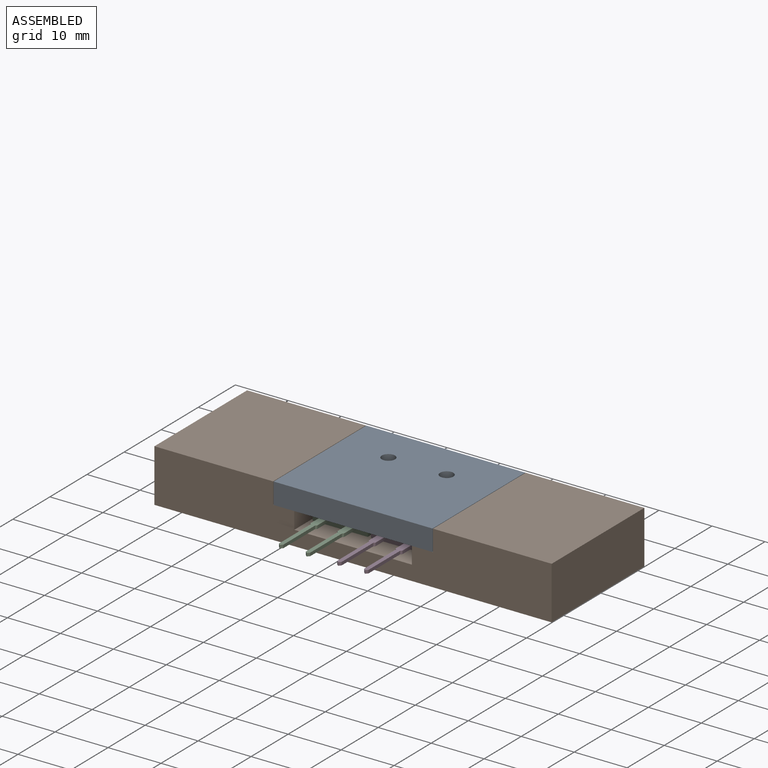
[diagram: assembled view]
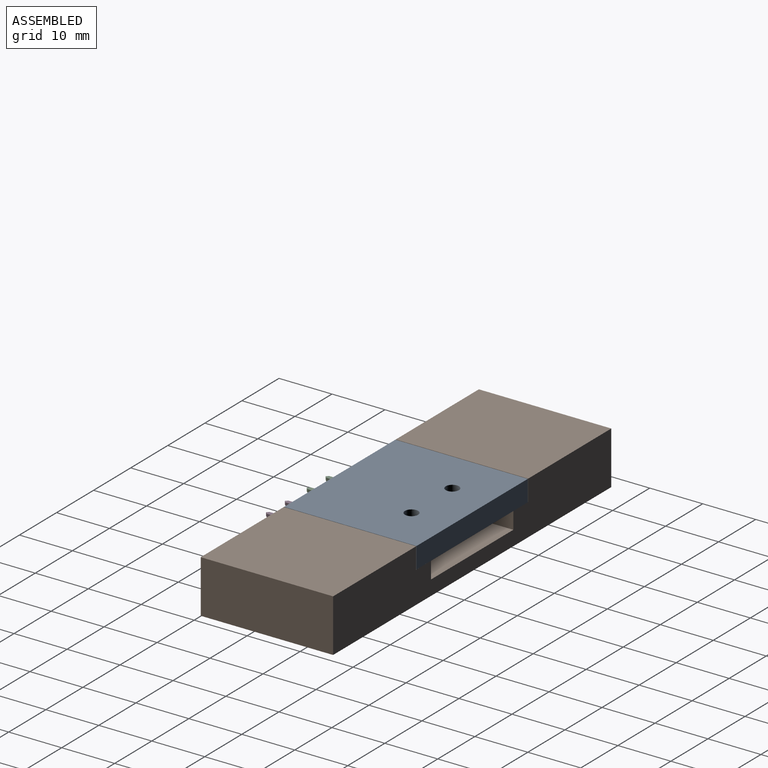
[diagram: assembled view, second angle]
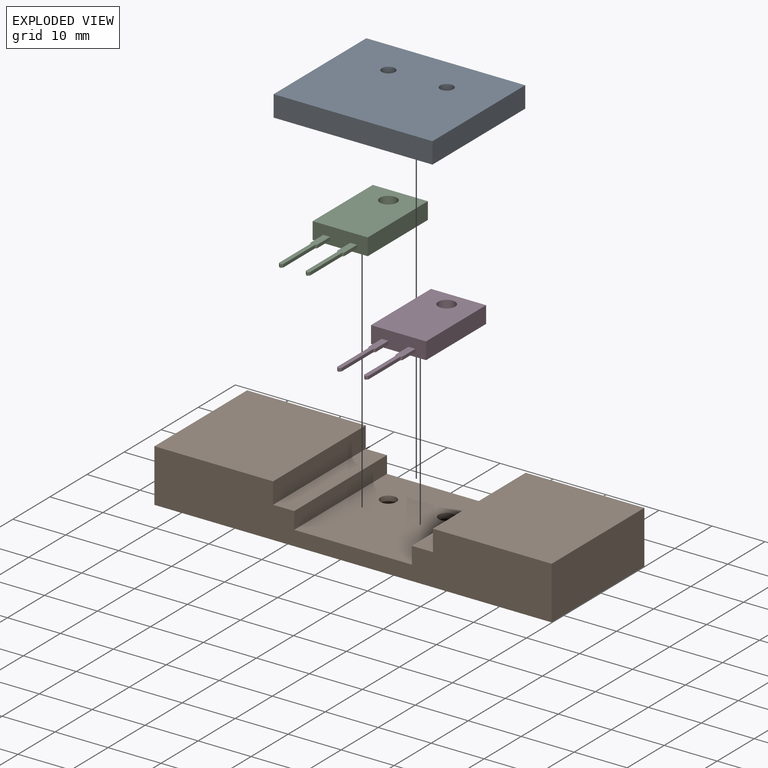
[diagram: exploded view]
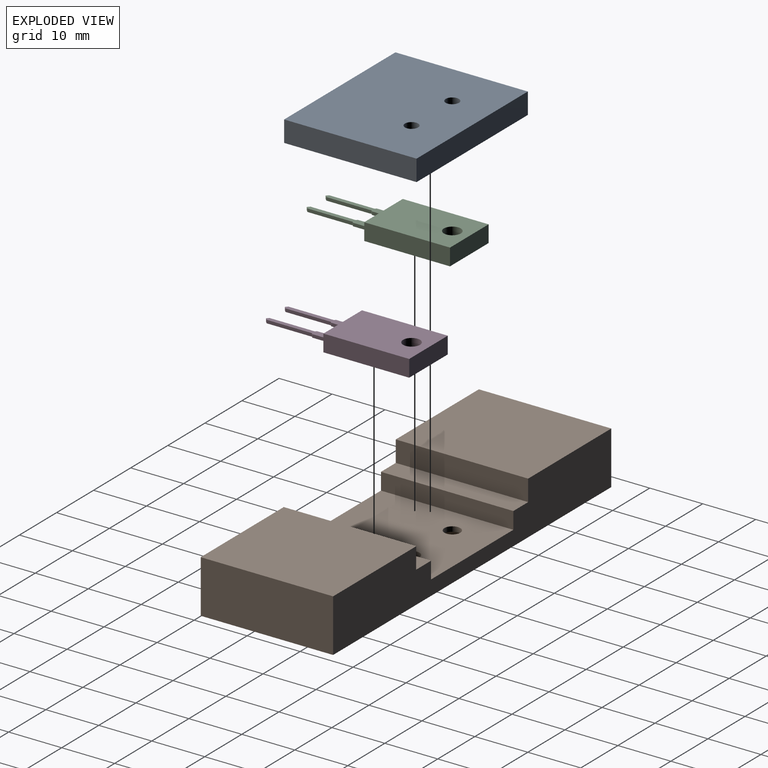
[diagram: exploded view, second angle]
ASSEMBLY  parts=4 mates=5
PART A: 8 faces, bbox 30x25x4 mm
  f0: plane 25x4mm, normal (1,0,0), area 100mm2, adj f1,f3,f4,f5
  f1: plane 30x4mm, normal (0,1,0), area 120mm2, adj f0,f2,f4,f5
  f2: plane 25x4mm, normal (-1,0,0), area 100mm2, adj f1,f3,f4,f5
  f3: plane 30x4mm, normal (0,-1,0), area 120mm2, adj f0,f2,f4,f5
  f4: plane 30x25mm, normal (0,0,1), area 740.2mm2, adj f0,f1,f2,f3,f6,f7
  f5: plane 30x25mm, normal (0,0,-1), area 740.2mm2, adj f0,f1,f2,f3,f6,f7
  f6: cylinder r=1.25mm len=4mm, axis (0,0,-1), area 31.4mm2, adj f4,f5
  f7: cylinder r=1.25mm len=4mm, axis (0,0,-1), area 31.4mm2, adj f4,f5
PART B: 18 faces, bbox 75x25x10 mm
  f0: plane 25x4mm, normal (0,0,1), area 100mm2, adj f1,f4,f8,f12
  f1: plane 75x10mm, normal (0,-1,0), area 558.2mm2, adj f0,f2,f3,f5,f6,f7,f8,f9
  f2: plane 25x22.4mm, normal (0,0,1), area 560mm2, adj f1,f3,f4,f8
  f3: plane 25x10mm, normal (1,0,0), area 250mm2, adj f1,f2,f4,f7
  f4: plane 75x10mm, normal (0,1,0), area 558.2mm2, adj f0,f2,f3,f5,f6,f7,f8,f9
  f5: plane 25x10mm, normal (-1,0,0), area 250mm2, adj f1,f4,f6,f7
  f6: plane 25x22.4mm, normal (0,0,1), area 560mm2, adj f1,f4,f5,f9
  f7: plane 75x25mm, normal (0,0,-1), area 1804.1mm2, adj f1,f3,f4,f5,f15,f17
  f8: plane 25x4mm, normal (-1,0,0), area 100mm2, adj f0,f1,f2,f4
  f9: plane 25x4mm, normal (1,0,0), area 100mm2, adj f1,f4,f6,f10
  f10: plane 25x4mm, normal (0,0,1), area 100mm2, adj f1,f4,f9,f11
  f11: plane 25x3.2mm, normal (1,0,0), area 80mm2, adj f1,f4,f10,f13
  f12: plane 25x3.2mm, normal (-1,0,0), area 80mm2, adj f0,f1,f4,f13
  f13: plane 25x22.2mm, normal (0,0,1), area 540.9mm2, adj f1,f4,f11,f12,f14,f16
  f14: cylinder r=1.5mm len=3mm, axis (0,0,-1), area 8.9mm2, adj f13,f15
  f15: cone r=1.5mm half-angle=45deg, axis (0,0,-1), area 40.2mm2, adj f7,f14
  f16: cylinder r=1.5mm len=3mm, axis (0,0,-1), area 8.9mm2, adj f13,f17
  f17: cone r=1.5mm half-angle=45deg, axis (0,0,-1), area 40.2mm2, adj f7,f16
PART C: 27 faces, bbox 10.4x28.9x3.2 mm
  f0: plane 10.4x3.2mm, normal (0,-1,0), area 31.7mm2, adj f1,f3,f5,f6,f7,f8,f15,f16
  f1: plane 16.2x3.2mm, normal (1,0,0), area 51.8mm2, adj f0,f2,f5,f6
  f2: plane 10.4x3.2mm, normal (0,1,0), area 33.3mm2, adj f1,f3,f5,f6
  f3: plane 16.2x3.2mm, normal (-1,0,0), area 51.8mm2, adj f0,f2,f5,f6
  f4: cylinder r=1.6mm len=3.2mm, axis (0,0,-1), area 32.2mm2, adj f5,f6
  f5: plane 16.2x10.4mm, normal (0,0,1), area 160.4mm2, adj f0,f1,f2,f3,f4
  f6: plane 16.2x10.4mm, normal (0,0,-1), area 160.4mm2, adj f0,f1,f2,f3,f4
  f7: plane 3.5x0.6mm, normal (1,0,0), area 2.1mm2, adj f0,f14,f15,f16
  f8: plane 3.5x0.6mm, normal (-1,0,0), area 2.1mm2, adj f0,f9,f15,f16
  f9: plane 0.6x0.25mm, normal (-0.71,-0.71,0), area 0.2mm2, adj f8,f10,f15,f16
  f10: plane 8.55x0.6mm, normal (-1,0,0), area 5.1mm2, adj f9,f11,f15,f16
  f11: plane 0.6x0.4mm, normal (-0.71,-0.71,0), area 0.3mm2, adj f10,f12,f15,f16
  f12: plane 0.6x0.4mm, normal (0.71,-0.71,0), area 0.3mm2, adj f11,f13,f15,f16
  f13: plane 8.55x0.6mm, normal (1,0,0), area 5.1mm2, adj f12,f14,f15,f16
  f14: plane 0.6x0.25mm, normal (0.71,-0.71,0), area 0.2mm2, adj f7,f13,f15,f16
  f15: plane 12.7x1.3mm, normal (0,0,1), area 11.8mm2, adj f0,f7,f8,f9,f10,f11,f12,f13
  f16: plane 12.7x1.3mm, normal (0,0,-1), area 11.8mm2, adj f0,f7,f8,f9,f10,f11,f12,f13
  f17: plane 3.5x0.6mm, normal (-1,0,0), area 2.1mm2, adj f0,f18,f25,f26
  f18: plane 0.6x0.25mm, normal (-0.71,-0.71,0), area 0.2mm2, adj f17,f19,f25,f26
  f19: plane 8.55x0.6mm, normal (-1,0,0), area 5.1mm2, adj f18,f20,f25,f26
  f20: plane 0.6x0.4mm, normal (-0.71,-0.71,0), area 0.3mm2, adj f19,f21,f25,f26
  f21: plane 0.6x0.4mm, normal (0.71,-0.71,0), area 0.3mm2, adj f20,f22,f25,f26
  f22: plane 8.55x0.6mm, normal (1,0,0), area 5.1mm2, adj f21,f23,f25,f26
  f23: plane 0.6x0.25mm, normal (0.71,-0.71,0), area 0.2mm2, adj f22,f24,f25,f26
  f24: plane 3.5x0.6mm, normal (1,0,0), area 2.1mm2, adj f0,f23,f25,f26
  f25: plane 12.7x1.3mm, normal (0,0,1), area 11.8mm2, adj f0,f17,f18,f19,f20,f21,f22,f23
  f26: plane 12.7x1.3mm, normal (0,0,-1), area 11.8mm2, adj f0,f17,f18,f19,f20,f21,f22,f23
PART D: same geometry as C
PLACE A at identity fixed
PLACE B t=(0,0,-6)mm
PLACE C rot(axis=(0,1,0),180deg) t=(-5.5,0,0)mm
PLACE D rot(axis=(0,1,0),180deg) t=(5.5,0,0)mm
MATE planar A.f5 <-> C.f6  axis (0,0,-1) through (0,-0.06,0)mm
MATE planar A.f5 <-> D.f6  axis (0,0,-1) through (0,-0.06,0)mm
MATE cylindrical A.f7 <-> C.f4  axis (0,0,-1) through (-5.5,4.9,0)mm
MATE planar A.f5 <-> B.f0  axis (0,0,-1) through (-15,-12.5,0)mm
MATE cylindrical D.f4 <-> A.f6  axis (0,0,1) through (5.5,4.9,-1.6)mm
